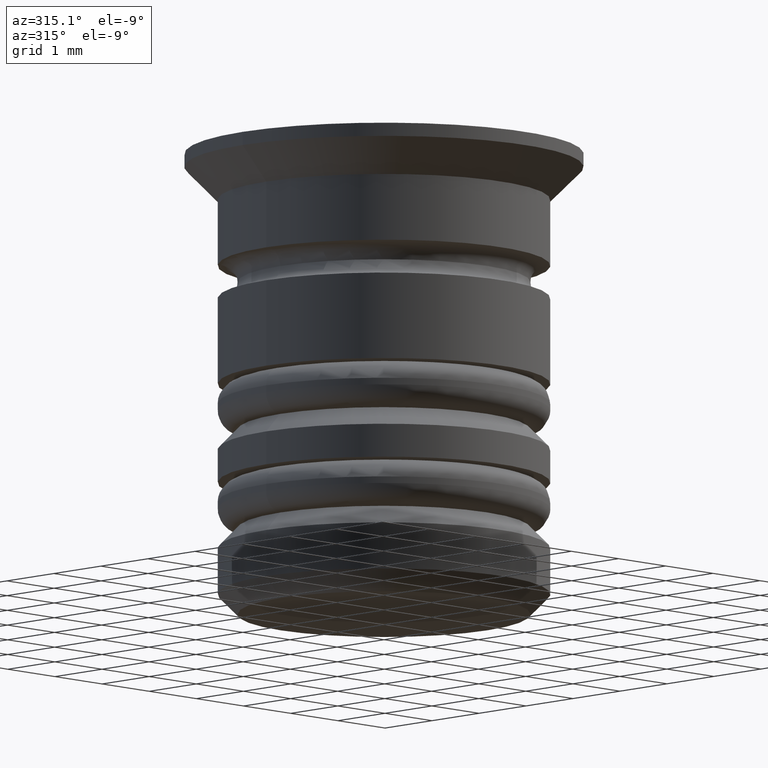
[diagram: clean part render]
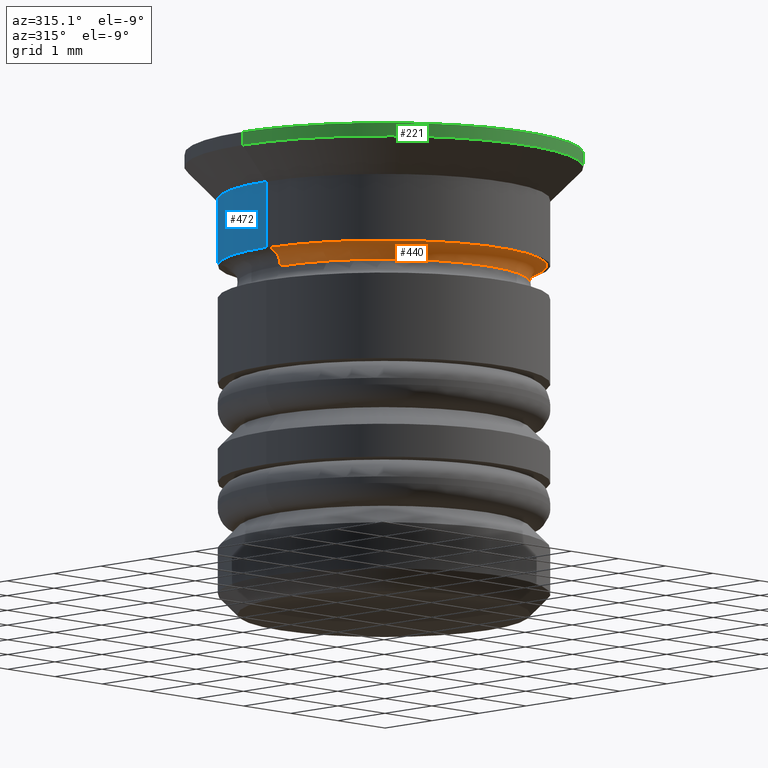
[diagram: same view with three faces highlighted in distinct colors, each labeled with its STEP entity id]
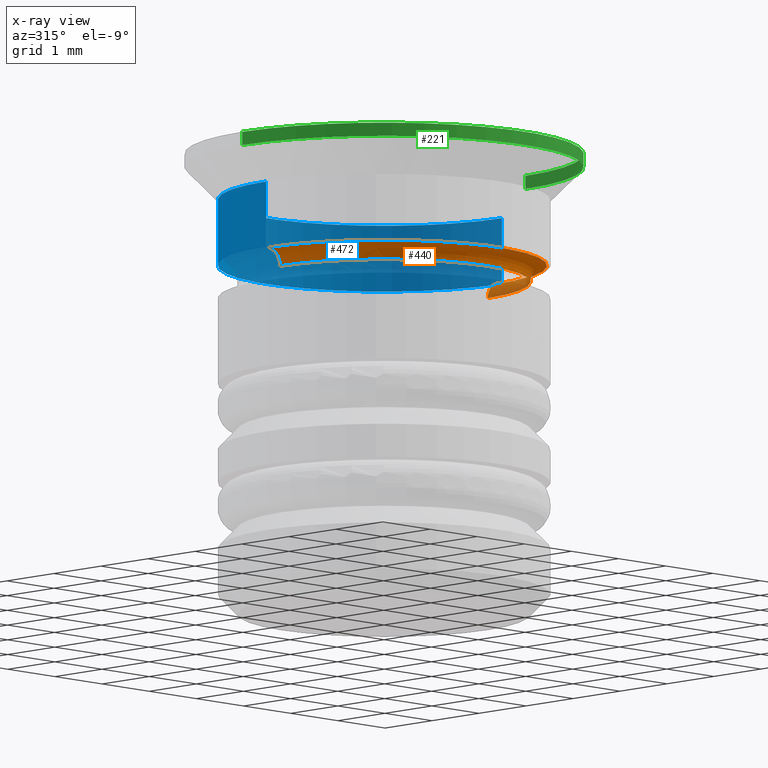
[diagram: x-ray of the same camera — body ghosted, the three highlighted faces saturated]
A machine part, auxiliary view with three faces highlighted in distinct colors.
The next image is the same camera in x-ray (body ghosted, the three faces saturated) — at least one of them is partly hidden behind the body in this view.
Their STEP definitions:

[orange] entity #440 — the highlighted toroidal blend (fillet) surface has major radius 2.45 mm and minor (blend) radius 0.25 mm.
#20 = CIRCLE ( 'NONE', #1160, 0.2500000000000002220 ) ;
#83 = DIRECTION ( 'NONE',  ( -0.000000000000000000, -0.000000000000000000, 1.000000000000000000 ) ) ;
#149 = AXIS2_PLACEMENT_3D ( 'NONE', #978, #404, #1659 ) ;
#239 = TOROIDAL_SURFACE ( 'NONE', #660, 2.450000000000001510, 0.2500000000000002220 ) ;
#353 = VERTEX_POINT ( 'NONE', #1655 ) ;
#373 = DIRECTION ( 'NONE',  ( 0.000000000000000000, -1.000000000000000000, 0.000000000000000000 ) ) ;
#404 = DIRECTION ( 'NONE',  ( -0.000000000000000000, -0.000000000000000000, 1.000000000000000000 ) ) ;
#440 = ADVANCED_FACE ( 'NONE', ( #1746 ), #239, .F. ) ;
#509 = CIRCLE ( 'NONE', #1541, 2.200000000000001510 ) ;
#531 = VERTEX_POINT ( 'NONE', #1033 ) ;
#544 = CARTESIAN_POINT ( 'NONE',  ( 2.200000000000001510, 0.000000000000000000, -1.950000000000000400 ) ) ;
#607 = DIRECTION ( 'NONE',  ( 1.000000000000000000, 0.000000000000000000, 0.000000000000000000 ) ) ;
#643 = DIRECTION ( 'NONE',  ( 1.000000000000000000, 0.000000000000000000, 0.000000000000000000 ) ) ;
#647 = ORIENTED_EDGE ( 'NONE', *, *, #666, .F. ) ;
#660 = AXIS2_PLACEMENT_3D ( 'NONE', #896, #879, #607 ) ;
#666 = EDGE_CURVE ( 'NONE', #531, #1032, #1690, .T. ) ;
#703 = EDGE_CURVE ( 'NONE', #353, #1032, #509, .T. ) ;
#783 = DIRECTION ( 'NONE',  ( 0.000000000000000000, 0.000000000000000000, -1.000000000000000000 ) ) ;
#879 = DIRECTION ( 'NONE',  ( -0.000000000000000000, -0.000000000000000000, 1.000000000000000000 ) ) ;
#896 = CARTESIAN_POINT ( 'NONE',  ( 0.000000000000000000, 0.000000000000000000, -1.950000000000000400 ) ) ;
#934 = ORIENTED_EDGE ( 'NONE', *, *, #1324, .F. ) ;
#978 = CARTESIAN_POINT ( 'NONE',  ( 0.000000000000000000, 0.000000000000000000, -1.700000000000000178 ) ) ;
#981 = EDGE_CURVE ( 'NONE', #1430, #353, #20, .T. ) ;
#1032 = VERTEX_POINT ( 'NONE', #544 ) ;
#1033 = CARTESIAN_POINT ( 'NONE',  ( 2.450000000000001510, 0.000000000000000000, -1.700000000000000178 ) ) ;
#1052 = CARTESIAN_POINT ( 'NONE',  ( 2.450000000000001510, 0.000000000000000000, -1.950000000000000400 ) ) ;
#1160 = AXIS2_PLACEMENT_3D ( 'NONE', #1522, #1274, #1670 ) ;
#1263 = ORIENTED_EDGE ( 'NONE', *, *, #981, .T. ) ;
#1274 = DIRECTION ( 'NONE',  ( 1.224646799147353207E-16, 1.000000000000000000, 0.000000000000000000 ) ) ;
#1293 = CARTESIAN_POINT ( 'NONE',  ( -2.450000000000001510, 3.000384657911017342E-16, -1.700000000000000178 ) ) ;
#1324 = EDGE_CURVE ( 'NONE', #1430, #531, #1747, .T. ) ;
#1336 = CARTESIAN_POINT ( 'NONE',  ( 0.000000000000000000, 0.000000000000000000, -1.950000000000000400 ) ) ;
#1430 = VERTEX_POINT ( 'NONE', #1293 ) ;
#1522 = CARTESIAN_POINT ( 'NONE',  ( -2.450000000000001510, 3.000384657911017342E-16, -1.950000000000000400 ) ) ;
#1541 = AXIS2_PLACEMENT_3D ( 'NONE', #1336, #83, #643 ) ;
#1563 = ORIENTED_EDGE ( 'NONE', *, *, #703, .T. ) ;
#1575 = AXIS2_PLACEMENT_3D ( 'NONE', #1052, #373, #783 ) ;
#1639 = EDGE_LOOP ( 'NONE', ( #1263, #1563, #647, #934 ) ) ;
#1655 = CARTESIAN_POINT ( 'NONE',  ( -2.200000000000001510, 2.694222958124178979E-16, -1.950000000000000400 ) ) ;
#1659 = DIRECTION ( 'NONE',  ( 1.000000000000000000, 0.000000000000000000, 0.000000000000000000 ) ) ;
#1670 = DIRECTION ( 'NONE',  ( -1.000000000000000000, 1.224646799147353454E-16, 0.000000000000000000 ) ) ;
#1690 = CIRCLE ( 'NONE', #1575, 0.2500000000000002220 ) ;
#1746 = FACE_OUTER_BOUND ( 'NONE', #1639, .T. ) ;
#1747 = CIRCLE ( 'NONE', #149, 2.450000000000001510 ) ;

[blue] entity #472 — the highlighted cylindrical surface (partial cylindrical patch) has radius 2.5 mm, axis along (-0, -0, 1).
#16 = CIRCLE ( 'NONE', #1044, 2.500000000000000444 ) ;
#51 = CARTESIAN_POINT ( 'NONE',  ( 0.000000000000000000, 0.000000000000000000, 0.000000000000000000 ) ) ;
#159 = EDGE_CURVE ( 'NONE', #722, #1687, #1045, .T. ) ;
#164 = DIRECTION ( 'NONE',  ( -0.000000000000000000, -0.000000000000000000, 1.000000000000000000 ) ) ;
#177 = VERTEX_POINT ( 'NONE', #1344 ) ;
#181 = DIRECTION ( 'NONE',  ( 1.000000000000000000, 0.000000000000000000, 0.000000000000000000 ) ) ;
#200 = CARTESIAN_POINT ( 'NONE',  ( -2.500000000000000444, 3.061616997868383634E-16, 0.000000000000000000 ) ) ;
#216 = CARTESIAN_POINT ( 'NONE',  ( 0.000000000000000000, 0.000000000000000000, -1.700000000000000178 ) ) ;
#258 = CARTESIAN_POINT ( 'NONE',  ( 0.000000000000000000, 0.000000000000000000, -0.6999999999999999556 ) ) ;
#267 = CARTESIAN_POINT ( 'NONE',  ( -2.500000000000000888, 3.061616997868384127E-16, -1.700000000000000178 ) ) ;
#272 = AXIS2_PLACEMENT_3D ( 'NONE', #51, #1004, #181 ) ;
#343 = CARTESIAN_POINT ( 'NONE',  ( 2.500000000000000888, 0.000000000000000000, -1.700000000000000178 ) ) ;
#344 = DIRECTION ( 'NONE',  ( -0.000000000000000000, -0.000000000000000000, 1.000000000000000000 ) ) ;
#424 = AXIS2_PLACEMENT_3D ( 'NONE', #216, #912, #789 ) ;
#431 = EDGE_CURVE ( 'NONE', #177, #1687, #16, .T. ) ;
#471 = ORIENTED_EDGE ( 'NONE', *, *, #620, .T. ) ;
#472 = ADVANCED_FACE ( 'NONE', ( #1042 ), #858, .T. ) ;
#476 = CARTESIAN_POINT ( 'NONE',  ( -2.500000000000000444, 3.061616997868383634E-16, -0.6999999999999999556 ) ) ;
#498 = ORIENTED_EDGE ( 'NONE', *, *, #1286, .F. ) ;
#542 = DIRECTION ( 'NONE',  ( -0.000000000000000000, -0.000000000000000000, 1.000000000000000000 ) ) ;
#620 = EDGE_CURVE ( 'NONE', #1778, #722, #1423, .T. ) ;
#722 = VERTEX_POINT ( 'NONE', #267 ) ;
#789 = DIRECTION ( 'NONE',  ( 1.000000000000000000, 0.000000000000000000, 0.000000000000000000 ) ) ;
#858 = CYLINDRICAL_SURFACE ( 'NONE', #272, 2.500000000000000444 ) ;
#912 = DIRECTION ( 'NONE',  ( -0.000000000000000000, -0.000000000000000000, 1.000000000000000000 ) ) ;
#977 = ORIENTED_EDGE ( 'NONE', *, *, #159, .T. ) ;
#1004 = DIRECTION ( 'NONE',  ( -0.000000000000000000, -0.000000000000000000, 1.000000000000000000 ) ) ;
#1042 = FACE_OUTER_BOUND ( 'NONE', #1533, .T. ) ;
#1044 = AXIS2_PLACEMENT_3D ( 'NONE', #258, #164, #1433 ) ;
#1045 = LINE ( 'NONE', #200, #1056 ) ;
#1056 = VECTOR ( 'NONE', #344, 1000.000000000000000 ) ;
#1097 = VECTOR ( 'NONE', #542, 1000.000000000000000 ) ;
#1252 = ORIENTED_EDGE ( 'NONE', *, *, #431, .F. ) ;
#1286 = EDGE_CURVE ( 'NONE', #1778, #177, #1545, .T. ) ;
#1344 = CARTESIAN_POINT ( 'NONE',  ( 2.500000000000000444, 0.000000000000000000, -0.6999999999999999556 ) ) ;
#1423 = CIRCLE ( 'NONE', #424, 2.500000000000000888 ) ;
#1433 = DIRECTION ( 'NONE',  ( 1.000000000000000000, 0.000000000000000000, 0.000000000000000000 ) ) ;
#1533 = EDGE_LOOP ( 'NONE', ( #471, #977, #1252, #498 ) ) ;
#1545 = LINE ( 'NONE', #1826, #1097 ) ;
#1687 = VERTEX_POINT ( 'NONE', #476 ) ;
#1778 = VERTEX_POINT ( 'NONE', #343 ) ;
#1826 = CARTESIAN_POINT ( 'NONE',  ( 2.500000000000000444, 0.000000000000000000, 0.000000000000000000 ) ) ;

[green] entity #221 — the highlighted cylindrical surface (partial cylindrical patch) has radius 3 mm, axis along (-0, -0, 1).
#45 = VECTOR ( 'NONE', #1817, 1000.000000000000000 ) ;
#114 = ORIENTED_EDGE ( 'NONE', *, *, #1299, .F. ) ;
#186 = AXIS2_PLACEMENT_3D ( 'NONE', #921, #1635, #930 ) ;
#192 = EDGE_CURVE ( 'NONE', #1166, #1136, #1014, .T. ) ;
#221 = ADVANCED_FACE ( 'NONE', ( #382 ), #490, .T. ) ;
#382 = FACE_OUTER_BOUND ( 'NONE', #649, .T. ) ;
#390 = AXIS2_PLACEMENT_3D ( 'NONE', #1508, #1475, #1067 ) ;
#490 = CYLINDRICAL_SURFACE ( 'NONE', #390, 3.000000000000000000 ) ;
#597 = EDGE_CURVE ( 'NONE', #1064, #737, #662, .T. ) ;
#629 = ORIENTED_EDGE ( 'NONE', *, *, #192, .T. ) ;
#649 = EDGE_LOOP ( 'NONE', ( #114, #629, #1818, #1346 ) ) ;
#662 = CIRCLE ( 'NONE', #186, 3.000000000000000000 ) ;
#737 = VERTEX_POINT ( 'NONE', #822 ) ;
#822 = CARTESIAN_POINT ( 'NONE',  ( 3.000000000000000000, 0.000000000000000000, 0.000000000000000000 ) ) ;
#843 = CARTESIAN_POINT ( 'NONE',  ( 3.000000000000000000, 0.000000000000000000, 0.000000000000000000 ) ) ;
#910 = CARTESIAN_POINT ( 'NONE',  ( -3.000000000000000000, 3.673940397442059868E-16, -0.1999999999999973743 ) ) ;
#921 = CARTESIAN_POINT ( 'NONE',  ( 0.000000000000000000, 0.000000000000000000, 0.000000000000000000 ) ) ;
#923 = DIRECTION ( 'NONE',  ( -0.000000000000000000, -0.000000000000000000, 1.000000000000000000 ) ) ;
#930 = DIRECTION ( 'NONE',  ( 1.000000000000000000, 0.000000000000000000, 0.000000000000000000 ) ) ;
#967 = EDGE_CURVE ( 'NONE', #1136, #737, #1128, .T. ) ;
#1014 = CIRCLE ( 'NONE', #1756, 3.000000000000000000 ) ;
#1064 = VERTEX_POINT ( 'NONE', #1256 ) ;
#1067 = DIRECTION ( 'NONE',  ( 1.000000000000000000, 0.000000000000000000, 0.000000000000000000 ) ) ;
#1108 = CARTESIAN_POINT ( 'NONE',  ( -3.000000000000000000, 3.673940397442059868E-16, 0.000000000000000000 ) ) ;
#1128 = LINE ( 'NONE', #843, #1130 ) ;
#1130 = VECTOR ( 'NONE', #1135, 1000.000000000000000 ) ;
#1135 = DIRECTION ( 'NONE',  ( -0.000000000000000000, -0.000000000000000000, 1.000000000000000000 ) ) ;
#1136 = VERTEX_POINT ( 'NONE', #1449 ) ;
#1166 = VERTEX_POINT ( 'NONE', #910 ) ;
#1209 = CARTESIAN_POINT ( 'NONE',  ( 0.000000000000000000, 0.000000000000000000, -0.1999999999999973743 ) ) ;
#1256 = CARTESIAN_POINT ( 'NONE',  ( -3.000000000000000000, 3.673940397442059868E-16, 0.000000000000000000 ) ) ;
#1299 = EDGE_CURVE ( 'NONE', #1166, #1064, #1677, .T. ) ;
#1346 = ORIENTED_EDGE ( 'NONE', *, *, #597, .F. ) ;
#1449 = CARTESIAN_POINT ( 'NONE',  ( 3.000000000000000000, 0.000000000000000000, -0.1999999999999973743 ) ) ;
#1475 = DIRECTION ( 'NONE',  ( -0.000000000000000000, -0.000000000000000000, 1.000000000000000000 ) ) ;
#1508 = CARTESIAN_POINT ( 'NONE',  ( 0.000000000000000000, 0.000000000000000000, 0.000000000000000000 ) ) ;
#1635 = DIRECTION ( 'NONE',  ( -0.000000000000000000, -0.000000000000000000, 1.000000000000000000 ) ) ;
#1645 = DIRECTION ( 'NONE',  ( -1.000000000000000000, 0.000000000000000000, 0.000000000000000000 ) ) ;
#1677 = LINE ( 'NONE', #1108, #45 ) ;
#1756 = AXIS2_PLACEMENT_3D ( 'NONE', #1209, #923, #1645 ) ;
#1817 = DIRECTION ( 'NONE',  ( -0.000000000000000000, -0.000000000000000000, 1.000000000000000000 ) ) ;
#1818 = ORIENTED_EDGE ( 'NONE', *, *, #967, .T. ) ;